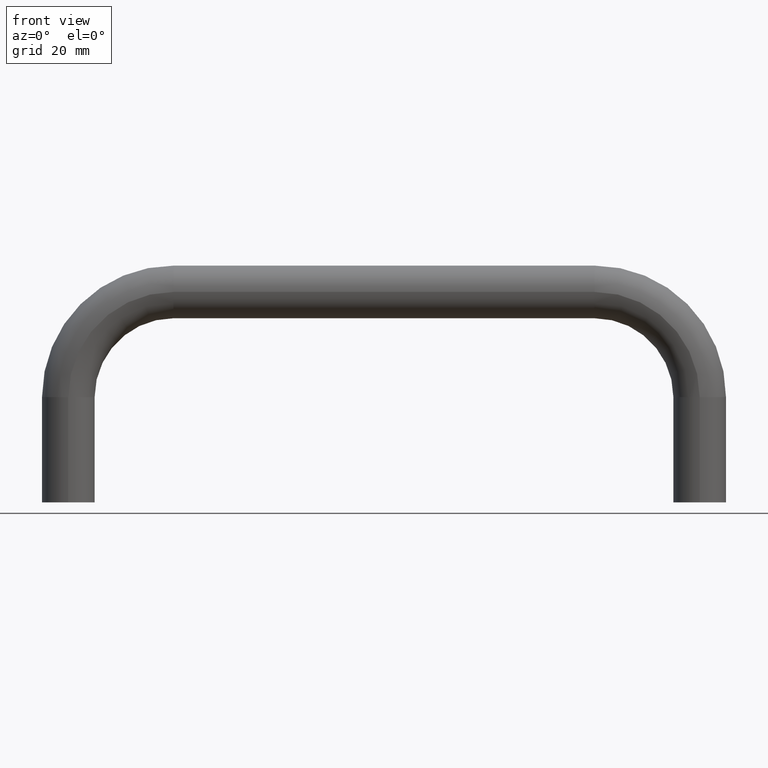
[diagram: clean part render]
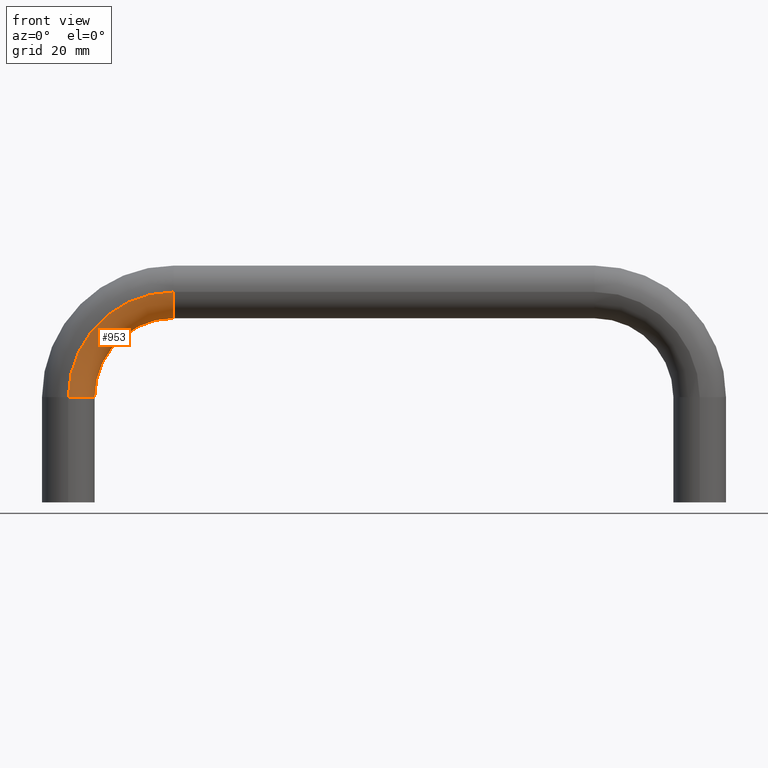
[diagram: same view with one face highlighted and labeled with its STEP entity id]
A machine part, front view. The second image highlights one B-rep face of the part: STEP entity #953.
In plain terms, the highlighted face is a freeform B-spline surface patch.
Its self-contained STEP definition (entity closure, byte-faithful):
#313=CARTESIAN_POINT('',(5.0,-5.499999999999999,20.0));
#314=VERTEX_POINT('',#313);
#321=CARTESIAN_POINT('',(0.0,-10.499999999999998,20.0));
#322=VERTEX_POINT('',#321);
#323=CARTESIAN_POINT('',(0.0,-5.499999999999999,20.0));
#324=DIRECTION('',(0.0,-6.123234E-017,-1.0));
#325=DIRECTION('',(1.0,0.0,0.0));
#326=AXIS2_PLACEMENT_3D('',#323,#324,#325);
#327=CIRCLE('',#326,5.0);
#328=EDGE_CURVE('',#314,#322,#327,.T.);
#447=CARTESIAN_POINT('',(20.0,-5.499999999999998,35.0));
#448=VERTEX_POINT('',#447);
#490=CARTESIAN_POINT('',(20.0,-5.499999999999999,20.0));
#491=DIRECTION('',(0.0,1.0,-6.123234E-017));
#492=DIRECTION('',(1.0,0.0,0.0));
#493=AXIS2_PLACEMENT_3D('',#490,#491,#492);
#494=CIRCLE('',#493,15.0);
#495=EDGE_CURVE('',#314,#448,#494,.T.);
#739=CARTESIAN_POINT('',(20.0,-10.499999999999998,40.0));
#740=VERTEX_POINT('',#739);
#838=CARTESIAN_POINT('',(20.0,-10.499999999999998,20.0));
#839=DIRECTION('',(0.0,1.0,-6.123234E-017));
#840=DIRECTION('',(1.0,0.0,0.0));
#841=AXIS2_PLACEMENT_3D('',#838,#839,#840);
#842=CIRCLE('',#841,20.0);
#843=EDGE_CURVE('',#322,#740,#842,.T.);
#849=CARTESIAN_POINT('',(5.0,-5.499999999999999,20.000000000000004));
#850=CARTESIAN_POINT('',(5.0,-6.150301073387094,20.000000000000004));
#851=CARTESIAN_POINT('',(4.739806119421106,-7.465139086716377,20.000000000000007));
#852=CARTESIAN_POINT('',(3.627064557364735,-9.127064557364733,20.0));
#853=CARTESIAN_POINT('',(1.965139086716376,-10.239806119421106,20.000000000000011));
#854=CARTESIAN_POINT('',(0.650301073387094,-10.499999999999998,20.000000000000004));
#855=CARTESIAN_POINT('',(0.0,-10.499999999999998,20.000000000000004));
#856=CARTESIAN_POINT('',(4.999999999999999,-5.499999999999999,20.980171403295611));
#857=CARTESIAN_POINT('',(4.999999999999999,-6.150301073387094,20.980171403295611));
#858=CARTESIAN_POINT('',(4.739806119421105,-7.465139086716377,20.997173710032676));
#859=CARTESIAN_POINT('',(3.627064557364734,-9.127064557364733,21.069885540591745));
#860=CARTESIAN_POINT('',(1.965139086716373,-10.239806119421106,21.178483661974298));
#861=CARTESIAN_POINT('',(0.650301073387092,-10.499999999999998,21.264401436683048));
#862=CARTESIAN_POINT('',(-2.324156E-015,-10.499999999999998,21.306895204394145));
#863=CARTESIAN_POINT('',(5.145409468943575,-5.499999999999996,22.456318732202266));
#864=CARTESIAN_POINT('',(5.145409468943575,-6.150301073387091,22.456318732202266));
#865=CARTESIAN_POINT('',(4.887737898631167,-7.465139086716374,22.498926672393644));
#866=CARTESIAN_POINT('',(3.785783213882138,-9.127064557364729,22.681143201925554));
#867=CARTESIAN_POINT('',(2.139968389907832,-10.239806119421102,22.953291112930767));
#868=CARTESIAN_POINT('',(0.837876369729553,-10.499999999999995,23.168601862394244));
#869=CARTESIAN_POINT('',(0.193879291924769,-10.499999999999995,23.275091642936367));
#870=CARTESIAN_POINT('',(5.622870687048849,-5.499999999999998,24.361180267527267));
#871=CARTESIAN_POINT('',(5.622870687048849,-6.150301073387093,24.361180267527267));
#872=CARTESIAN_POINT('',(5.373481282547430,-7.465139086716375,24.436830428708063));
#873=CARTESIAN_POINT('',(4.306945993908780,-9.127064557364731,24.760354864927908));
#874=CARTESIAN_POINT('',(2.714031500575537,-10.239806119421104,25.243551969507415));
#875=CARTESIAN_POINT('',(1.453791757694279,-10.499999999999996,25.625835009422502));
#876=CARTESIAN_POINT('',(0.830494249398466,-10.499999999999996,25.814907023369678));
#877=CARTESIAN_POINT('',(6.284415185898468,-5.500000000000001,26.210794227283920));
#878=CARTESIAN_POINT('',(6.284415185898468,-6.150301073387094,26.210794227283920));
#879=CARTESIAN_POINT('',(6.046501103419129,-7.465139086716381,26.318528270715532));
#880=CARTESIAN_POINT('',(5.029041018715135,-9.127064557364736,26.779262195387417));
#881=CARTESIAN_POINT('',(3.509422368888923,-10.239806119421107,27.467387336672722));
#882=CARTESIAN_POINT('',(2.307170882980753,-10.500000000000000,28.011799892872631));
#883=CARTESIAN_POINT('',(1.712553581197956,-10.500000000000000,28.281058969711903));
#884=CARTESIAN_POINT('',(7.447635609011684,-5.499999999999997,28.387584936209869));
#885=CARTESIAN_POINT('',(7.447635609011684,-6.150301073387092,28.387584936209869));
#886=CARTESIAN_POINT('',(7.229899048922912,-7.465139086716373,28.533078154425702));
#887=CARTESIAN_POINT('',(6.298729878260973,-9.127064557364724,29.155292445345601));
#888=CARTESIAN_POINT('',(4.907990271711447,-10.239806119421111,30.084595181526531));
#889=CARTESIAN_POINT('',(3.807701881149292,-10.499999999999996,30.819816215803641));
#890=CARTESIAN_POINT('',(3.263514145348917,-10.499999999999996,31.183446581613147));
#891=CARTESIAN_POINT('',(9.325084755102232,-5.499999999999998,30.674915244897782));
#892=CARTESIAN_POINT('',(9.325084755102232,-6.150301073387093,30.674915244897782));
#893=CARTESIAN_POINT('',(9.139914913607520,-7.465139086716374,30.860085086392502));
#894=CARTESIAN_POINT('',(8.348020122645719,-9.127064557364738,31.651979877354293));
#895=CARTESIAN_POINT('',(7.165292553145183,-10.239806119421107,32.834707446854821));
#896=CARTESIAN_POINT('',(6.229573596274523,-10.500000000000000,33.770426403725487));
#897=CARTESIAN_POINT('',(5.766779673469640,-10.500000000000000,34.233220326530372));
#898=CARTESIAN_POINT('',(11.612415063790124,-5.499999999999997,32.552364390988302));
#899=CARTESIAN_POINT('',(11.612415063790124,-6.150301073387091,32.552364390988302));
#900=CARTESIAN_POINT('',(11.466921845574291,-7.465139086716368,32.770100951077076));
#901=CARTESIAN_POINT('',(10.844707554654374,-9.127064557364731,33.701270121739014));
#902=CARTESIAN_POINT('',(9.915404818473469,-10.239806119421099,35.092009728288588));
#903=CARTESIAN_POINT('',(9.180183784196350,-10.499999999999993,36.192298118850701));
#904=CARTESIAN_POINT('',(8.816553418386835,-10.499999999999993,36.736485854651086));
#905=CARTESIAN_POINT('',(13.789205772716087,-5.499999999999998,33.715584814101533));
#906=CARTESIAN_POINT('',(13.789205772716087,-6.150301073387093,33.715584814101533));
#907=CARTESIAN_POINT('',(13.681471729284491,-7.465139086716381,33.953498896580882));
#908=CARTESIAN_POINT('',(13.220737804612575,-9.127064557364733,34.970958981284852));
#909=CARTESIAN_POINT('',(12.532612663327326,-10.239806119421104,36.490577631111066));
#910=CARTESIAN_POINT('',(11.988200107127385,-10.499999999999998,37.692829117019244));
#911=CARTESIAN_POINT('',(11.718941030288120,-10.499999999999998,38.287446418802041));
#912=CARTESIAN_POINT('',(15.638819732472736,-5.499999999999996,34.377129312951148));
#913=CARTESIAN_POINT('',(15.638819732472736,-6.150301073387093,34.377129312951148));
#914=CARTESIAN_POINT('',(15.563169571291938,-7.465139086716374,34.626518717452569));
#915=CARTESIAN_POINT('',(15.239645135072077,-9.127064557364729,35.693054006091202));
#916=CARTESIAN_POINT('',(14.756448030492590,-10.239806119421102,37.285968499424499));
#917=CARTESIAN_POINT('',(14.374164990577491,-10.499999999999995,38.546208242305724));
#918=CARTESIAN_POINT('',(14.185092976630312,-10.499999999999995,39.169505750601530));
#919=CARTESIAN_POINT('',(17.543681267797723,-5.499999999999999,34.854590531056417));
#920=CARTESIAN_POINT('',(17.543681267797723,-6.150301073387093,34.854590531056417));
#921=CARTESIAN_POINT('',(17.501073327606370,-7.465139086716373,35.112262101368849));
#922=CARTESIAN_POINT('',(17.318856798074432,-9.127064557364736,36.214216786117859));
#923=CARTESIAN_POINT('',(17.046708887069261,-10.239806119421104,37.860031610092157));
#924=CARTESIAN_POINT('',(16.831398137605767,-10.499999999999996,39.162123630270443));
#925=CARTESIAN_POINT('',(16.724908357063640,-10.499999999999996,39.806120708075227));
#926=CARTESIAN_POINT('',(19.019828596704393,-5.499999999999998,35.0));
#927=CARTESIAN_POINT('',(19.019828596704393,-6.150301073387093,35.0));
#928=CARTESIAN_POINT('',(19.002826289967338,-7.465139086716373,35.260193880578903));
#929=CARTESIAN_POINT('',(18.930114459408252,-9.127064557364735,36.372935442635260));
#930=CARTESIAN_POINT('',(18.821516338025720,-10.239806119421104,38.034860913283623));
#931=CARTESIAN_POINT('',(18.735598563316959,-10.499999999999996,39.349698926612902));
#932=CARTESIAN_POINT('',(18.693104795605858,-10.499999999999996,40.0));
#933=CARTESIAN_POINT('',(20.0,-5.499999999999998,35.0));
#934=CARTESIAN_POINT('',(20.0,-6.150301073387093,35.0));
#935=CARTESIAN_POINT('',(20.000000000000007,-7.465139086716375,35.260193880578889));
#936=CARTESIAN_POINT('',(19.999999999999993,-9.127064557364731,36.372935442635260));
#937=CARTESIAN_POINT('',(20.000000000000007,-10.239806119421104,38.034860913283637));
#938=CARTESIAN_POINT('',(20.0,-10.499999999999996,39.349698926612902));
#939=CARTESIAN_POINT('',(20.0,-10.499999999999996,40.0));
#940=B_SPLINE_SURFACE_WITH_KNOTS('',3,3,((#849,#856,#863,#870,#877,#884,#891,#898,#905,#912,#919,#926,#933),(#850,#857,#864,#871,#878,#885,#892,#899,#906,#913,#920,#927,#934),(#851,#858,#865,#872,#879,#886,#893,#900,#907,#914,#921,#928,#935),(#852,#859,#866,#873,#880,#887,#894,#901,#908,#915,#922,#929,#936),(#853,#860,#867,#874,#881,#888,#895,#902,#909,#916,#923,#930,#937),(#854,#861,#868,#875,#882,#889,#896,#903,#910,#917,#924,#931,#938),(#855,#862,#869,#876,#883,#890,#897,#904,#911,#918,#925,#932,#939)),.UNSPECIFIED.,.F.,.F.,.U.,(4,1,1,1,4),(4,1,1,1,1,1,1,1,1,1,4),(0.0,1.950903220161283,3.901806440322566,5.852709660483848,7.803612880645131),(0.0,3.329903032368826,4.996862474205125,6.663821916041431,9.993724948410250,13.323627980779074,16.653531013147902,19.983434045516717,21.650393487353021,23.317352929189326,26.647255961558148),.UNSPECIFIED.);
#941=ORIENTED_EDGE('',*,*,#495,.T.);
#942=CARTESIAN_POINT('',(20.0,-5.499999999999997,40.0));
#943=DIRECTION('',(-1.0,0.0,0.0));
#944=DIRECTION('',(0.0,-6.123234E-017,-1.0));
#945=AXIS2_PLACEMENT_3D('',#942,#943,#944);
#946=CIRCLE('',#945,5.0);
#947=EDGE_CURVE('',#448,#740,#946,.T.);
#948=ORIENTED_EDGE('',*,*,#947,.T.);
#949=ORIENTED_EDGE('',*,*,#843,.F.);
#950=ORIENTED_EDGE('',*,*,#328,.F.);
#951=EDGE_LOOP('',(#941,#948,#949,#950));
#952=FACE_OUTER_BOUND('',#951,.T.);
#953=ADVANCED_FACE('',(#952),#940,.F.);